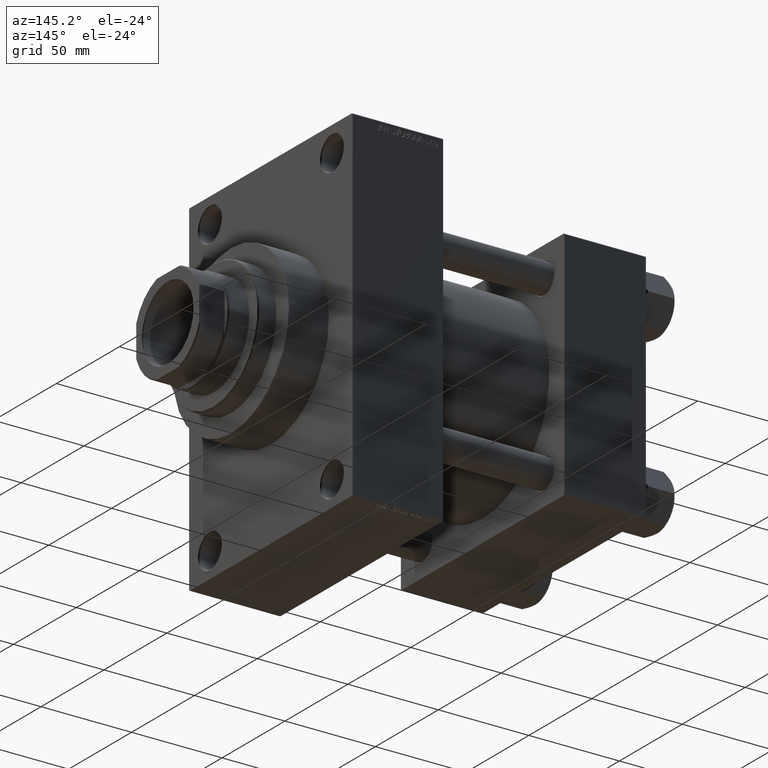
[diagram: clean part render]
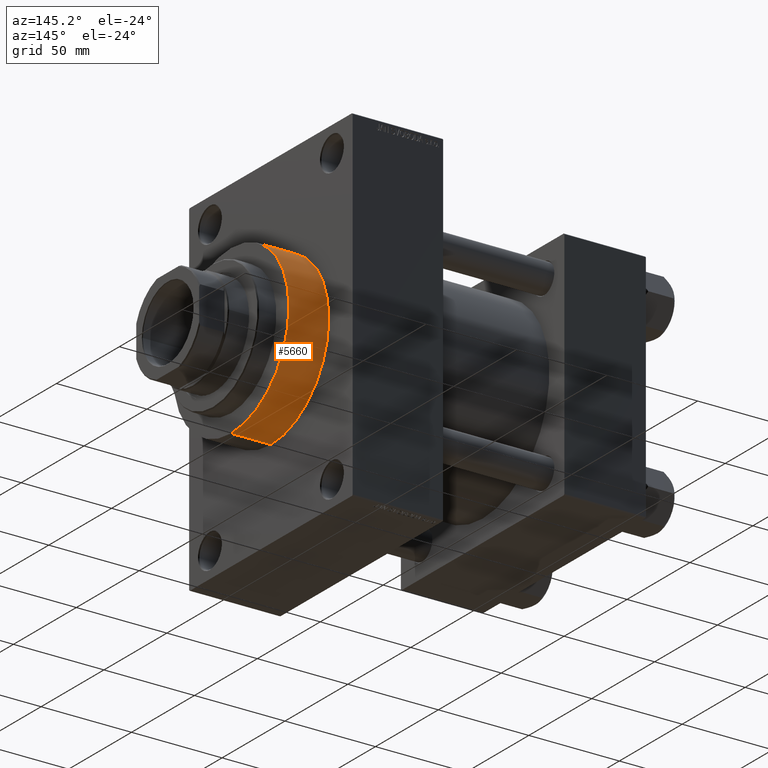
[diagram: same view with one face highlighted and labeled with its STEP entity id]
A machine part, auxiliary view. The second image highlights one B-rep face of the part: STEP entity #5660.
In plain terms, the highlighted cylindrical surface (partial cylindrical patch) has radius 46 mm, axis along (-1, -0, -0).
Its self-contained STEP definition (entity closure, byte-faithful):
#1036 = CIRCLE ( 'NONE', #20329, 46.00000000000000000 ) ;
#1326 = VERTEX_POINT ( 'NONE', #44464 ) ;
#2960 = ORIENTED_EDGE ( 'NONE', *, *, #15371, .T. ) ;
#5660 = ADVANCED_FACE ( 'NONE', ( #45458 ), #37989, .T. ) ;
#6404 = LINE ( 'NONE', #44532, #31500 ) ;
#10233 = EDGE_CURVE ( 'NONE', #33849, #1326, #1036, .T. ) ;
#12400 = AXIS2_PLACEMENT_3D ( 'NONE', #40269, #14909, #32814 ) ;
#14497 = VECTOR ( 'NONE', #33261, 1000.000000000000000 ) ;
#14909 = DIRECTION ( 'NONE',  ( 1.000000000000000000, 0.000000000000000000, 0.000000000000000000 ) ) ;
#15224 = VERTEX_POINT ( 'NONE', #46776 ) ;
#15371 = EDGE_CURVE ( 'NONE', #18643, #15224, #18552, .T. ) ;
#18552 = CIRCLE ( 'NONE', #12400, 46.00000000000000000 ) ;
#18643 = VERTEX_POINT ( 'NONE', #22437 ) ;
#19255 = DIRECTION ( 'NONE',  ( 0.000000000000000000, 0.000000000000000000, -1.000000000000000000 ) ) ;
#20329 = AXIS2_PLACEMENT_3D ( 'NONE', #40753, #33982, #19255 ) ;
#21639 = EDGE_LOOP ( 'NONE', ( #45238, #25901, #2960, #28525 ) ) ;
#21743 = AXIS2_PLACEMENT_3D ( 'NONE', #38462, #27371, #35093 ) ;
#22143 = LINE ( 'NONE', #44343, #14497 ) ;
#22437 = CARTESIAN_POINT ( 'NONE',  ( 162.0000000000000000, 5.633375276077824704E-15, -46.00000000000000000 ) ) ;
#25901 = ORIENTED_EDGE ( 'NONE', *, *, #36519, .T. ) ;
#26673 = DIRECTION ( 'NONE',  ( -1.000000000000000000, -0.000000000000000000, -0.000000000000000000 ) ) ;
#27371 = DIRECTION ( 'NONE',  ( -1.000000000000000000, -0.000000000000000000, -0.000000000000000000 ) ) ;
#28525 = ORIENTED_EDGE ( 'NONE', *, *, #35377, .F. ) ;
#31500 = VECTOR ( 'NONE', #26673, 1000.000000000000000 ) ;
#31684 = CARTESIAN_POINT ( 'NONE',  ( 184.0000000000000000, 5.633375276077824704E-15, -46.00000000000000000 ) ) ;
#32814 = DIRECTION ( 'NONE',  ( 0.000000000000000000, 0.000000000000000000, -1.000000000000000000 ) ) ;
#33261 = DIRECTION ( 'NONE',  ( -1.000000000000000000, -0.000000000000000000, -0.000000000000000000 ) ) ;
#33849 = VERTEX_POINT ( 'NONE', #31684 ) ;
#33982 = DIRECTION ( 'NONE',  ( 1.000000000000000000, 0.000000000000000000, 0.000000000000000000 ) ) ;
#35093 = DIRECTION ( 'NONE',  ( 0.000000000000000000, 0.000000000000000000, 1.000000000000000000 ) ) ;
#35377 = EDGE_CURVE ( 'NONE', #1326, #15224, #22143, .T. ) ;
#36519 = EDGE_CURVE ( 'NONE', #33849, #18643, #6404, .T. ) ;
#37989 = CYLINDRICAL_SURFACE ( 'NONE', #21743, 46.00000000000000000 ) ;
#38462 = CARTESIAN_POINT ( 'NONE',  ( 184.0000000000000000, 0.000000000000000000, 0.000000000000000000 ) ) ;
#40269 = CARTESIAN_POINT ( 'NONE',  ( 162.0000000000000000, 0.000000000000000000, 0.000000000000000000 ) ) ;
#40753 = CARTESIAN_POINT ( 'NONE',  ( 184.0000000000000000, 0.000000000000000000, 0.000000000000000000 ) ) ;
#44343 = CARTESIAN_POINT ( 'NONE',  ( 184.0000000000000000, 0.000000000000000000, 46.00000000000000000 ) ) ;
#44464 = CARTESIAN_POINT ( 'NONE',  ( 184.0000000000000000, 0.000000000000000000, 46.00000000000000000 ) ) ;
#44532 = CARTESIAN_POINT ( 'NONE',  ( 184.0000000000000000, 5.633375276077824704E-15, -46.00000000000000000 ) ) ;
#45238 = ORIENTED_EDGE ( 'NONE', *, *, #10233, .F. ) ;
#45458 = FACE_OUTER_BOUND ( 'NONE', #21639, .T. ) ;
#46776 = CARTESIAN_POINT ( 'NONE',  ( 162.0000000000000000, 0.000000000000000000, 46.00000000000000000 ) ) ;